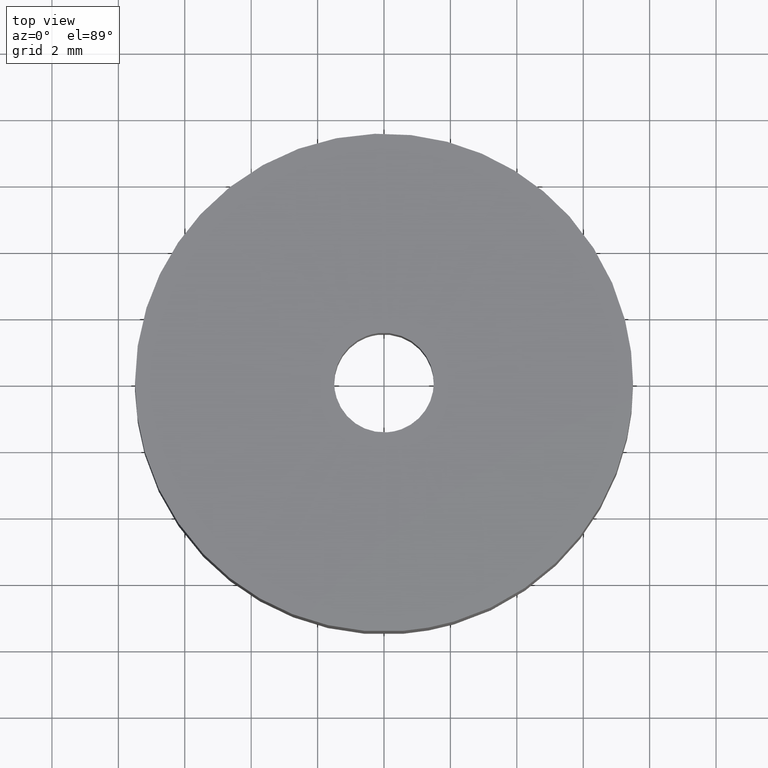
[diagram: clean part render]
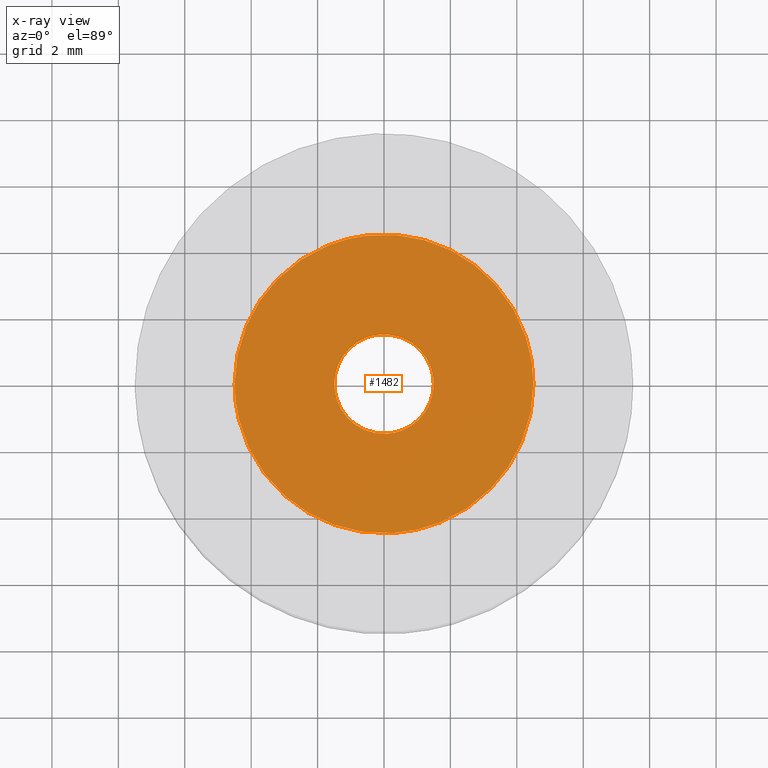
[diagram: x-ray — body ghosted, one internal face saturated and labeled with its STEP entity id]
A machine part, top view, then the same camera in x-ray: the body is ghosted and one INTERNAL B-rep face — a face not visible from any outside direction — is saturated and labeled: STEP entity #1482.
In plain terms, the highlighted face is a freeform B-spline surface patch.
Its self-contained STEP definition (entity closure, byte-faithful):
#754=CARTESIAN_POINT('',(-0.177051352002078,1.489514289543486,3.500000000000000));
#755=VERTEX_POINT('',#754);
#761=CARTESIAN_POINT('',(1.500000000000000,0.0,3.500000000000000));
#762=VERTEX_POINT('',#761);
#763=CARTESIAN_POINT('',(-0.177051352002078,1.489514289543485,3.500000000000000));
#764=CARTESIAN_POINT('',(-0.088836179494984,1.500000000000000,3.500000000000000));
#765=CARTESIAN_POINT('',(0.0,1.500000000000000,3.500000000000000));
#766=CARTESIAN_POINT('',(1.500000000000000,1.500000000000000,3.499999999999999));
#767=CARTESIAN_POINT('',(1.500000000000000,0.0,3.500000000000000));
#775=(BOUNDED_CURVE()B_SPLINE_CURVE(2,(#763,#764,#765,#766,#767),.UNSPECIFIED.,.F.,.U.)B_SPLINE_CURVE_WITH_KNOTS((3,2,3),(0.229562473511800,0.250000000000000,0.500000000000000),.UNSPECIFIED.)CURVE()GEOMETRIC_REPRESENTATION_ITEM()RATIONAL_B_SPLINE_CURVE((0.956026754180351,0.976055948329144,1.0,0.707106781186548,1.0))REPRESENTATION_ITEM(''));
#776=EDGE_CURVE('',#755,#762,#775,.T.);
#778=CARTESIAN_POINT('',(0.091572612195500,-1.497202209688342,3.500000000000000));
#779=VERTEX_POINT('',#778);
#780=CARTESIAN_POINT('',(1.500000000000000,0.0,3.500000000000000));
#781=CARTESIAN_POINT('',(1.500000000000000,-1.411059472584951,3.500000000000000));
#782=CARTESIAN_POINT('',(0.091572612195500,-1.497202209688342,3.500000000000000));
#790=(BOUNDED_CURVE()B_SPLINE_CURVE(2,(#780,#781,#782),.UNSPECIFIED.,.F.,.U.)B_SPLINE_CURVE_WITH_KNOTS((3,3),(0.500000000000000,0.739333007673568),.UNSPECIFIED.)CURVE()GEOMETRIC_REPRESENTATION_ITEM()RATIONAL_B_SPLINE_CURVE((1.0,0.719603940056736,0.976072139041787))REPRESENTATION_ITEM(''));
#791=EDGE_CURVE('',#762,#779,#790,.T.);
#865=CARTESIAN_POINT('',(-1.500000000000000,0.0,3.500000000000000));
#866=VERTEX_POINT('',#865);
#867=CARTESIAN_POINT('',(0.091572612195500,-1.497202209688341,3.500000000000000));
#868=CARTESIAN_POINT('',(0.045828947288432,-1.500000000000000,3.500000000000000));
#869=CARTESIAN_POINT('',(0.0,-1.500000000000000,3.500000000000000));
#870=CARTESIAN_POINT('',(-1.500000000000000,-1.500000000000000,3.499999999999999));
#871=CARTESIAN_POINT('',(-1.500000000000000,0.0,3.500000000000000));
#879=(BOUNDED_CURVE()B_SPLINE_CURVE(2,(#867,#868,#869,#870,#871),.UNSPECIFIED.,.F.,.U.)B_SPLINE_CURVE_WITH_KNOTS((3,2,3),(0.739333007673567,0.750000000000000,1.0),.UNSPECIFIED.)CURVE()GEOMETRIC_REPRESENTATION_ITEM()RATIONAL_B_SPLINE_CURVE((0.976072139041785,0.987502841129810,1.0,0.707106781186548,1.0))REPRESENTATION_ITEM(''));
#880=EDGE_CURVE('',#779,#866,#879,.T.);
#882=CARTESIAN_POINT('',(-1.500000000000000,0.0,3.500000000000000));
#883=CARTESIAN_POINT('',(-1.500000000000000,1.332261788896535,3.500000000000000));
#884=CARTESIAN_POINT('',(-0.177051352002078,1.489514289543485,3.500000000000000));
#892=(BOUNDED_CURVE()B_SPLINE_CURVE(2,(#882,#883,#884),.UNSPECIFIED.,.F.,.U.)B_SPLINE_CURVE_WITH_KNOTS((3,3),(0.0,0.229562473511800),.UNSPECIFIED.)CURVE()GEOMETRIC_REPRESENTATION_ITEM()RATIONAL_B_SPLINE_CURVE((1.0,0.731050832857404,0.956026754180351))REPRESENTATION_ITEM(''));
#893=EDGE_CURVE('',#866,#755,#892,.T.);
#921=CARTESIAN_POINT('',(-0.531149244590394,4.468543440534910,3.500000000000124));
#922=VERTEX_POINT('',#921);
#923=CARTESIAN_POINT('',(4.500000000000000,0.0,3.500000000000000));
#924=VERTEX_POINT('',#923);
#925=CARTESIAN_POINT('',(-0.531149244590394,4.468543440534910,3.500000000000124));
#926=CARTESIAN_POINT('',(-0.266506107318906,4.500000000000000,3.500000000000001));
#927=CARTESIAN_POINT('',(0.0,4.500000000000000,3.500000000000000));
#928=CARTESIAN_POINT('',(4.500000000000000,4.500000000000000,3.500000000000000));
#929=CARTESIAN_POINT('',(4.500000000000000,0.0,3.500000000000000));
#937=(BOUNDED_CURVE()B_SPLINE_CURVE(2,(#925,#926,#927,#928,#929),.UNSPECIFIED.,.F.,.U.)B_SPLINE_CURVE_WITH_KNOTS((3,2,3),(0.229562655484666,0.250000000000000,0.500000000000000),.UNSPECIFIED.)CURVE()GEOMETRIC_REPRESENTATION_ITEM()RATIONAL_B_SPLINE_CURVE((0.956027110854925,0.976056161523617,1.0,0.707106781186547,1.0))REPRESENTATION_ITEM(''));
#938=EDGE_CURVE('',#922,#924,#937,.T.);
#979=CARTESIAN_POINT('',(0.274713686514488,-4.491606882889357,3.500000000000146));
#980=VERTEX_POINT('',#979);
#986=CARTESIAN_POINT('',(4.500000000000000,0.0,3.500000000000000));
#987=CARTESIAN_POINT('',(4.500000000000001,-4.233181778019350,3.500000000000000));
#988=CARTESIAN_POINT('',(0.274713686514488,-4.491606882889357,3.500000000000146));
#996=(BOUNDED_CURVE()B_SPLINE_CURVE(2,(#986,#987,#988),.UNSPECIFIED.,.F.,.U.)B_SPLINE_CURVE_WITH_KNOTS((3,3),(0.500000000000000,0.739333144384399),.UNSPECIFIED.)CURVE()GEOMETRIC_REPRESENTATION_ITEM()RATIONAL_B_SPLINE_CURVE((1.0,0.719603779890034,0.976072432039414))REPRESENTATION_ITEM(''));
#997=EDGE_CURVE('',#924,#980,#996,.T.);
#1020=CARTESIAN_POINT('',(-4.500000000000000,0.0,3.500000000000000));
#1021=VERTEX_POINT('',#1020);
#1022=CARTESIAN_POINT('',(-4.500000000000000,0.0,3.500000000000000));
#1023=CARTESIAN_POINT('',(-4.499999999999999,3.996789700492105,3.500000000000000));
#1024=CARTESIAN_POINT('',(-0.531149244590394,4.468543440534910,3.500000000000124));
#1032=(BOUNDED_CURVE()B_SPLINE_CURVE(2,(#1022,#1023,#1024),.UNSPECIFIED.,.F.,.U.)B_SPLINE_CURVE_WITH_KNOTS((3,3),(0.0,0.229562655484666),.UNSPECIFIED.)CURVE()GEOMETRIC_REPRESENTATION_ITEM()RATIONAL_B_SPLINE_CURVE((1.0,0.731050619662930,0.956027110854925))REPRESENTATION_ITEM(''));
#1033=EDGE_CURVE('',#1021,#922,#1032,.T.);
#1035=CARTESIAN_POINT('',(0.274713686514488,-4.491606882889357,3.500000000000146));
#1036=CARTESIAN_POINT('',(0.137485057500456,-4.500000000000000,3.499999999999999));
#1037=CARTESIAN_POINT('',(0.0,-4.500000000000000,3.500000000000000));
#1038=CARTESIAN_POINT('',(-4.500000000000000,-4.500000000000000,3.500000000000000));
#1039=CARTESIAN_POINT('',(-4.500000000000000,0.0,3.500000000000000));
#1047=(BOUNDED_CURVE()B_SPLINE_CURVE(2,(#1035,#1036,#1037,#1038,#1039),.UNSPECIFIED.,.F.,.U.)B_SPLINE_CURVE_WITH_KNOTS((3,2,3),(0.739333144384399,0.750000000000000,1.0),.UNSPECIFIED.)CURVE()GEOMETRIC_REPRESENTATION_ITEM()RATIONAL_B_SPLINE_CURVE((0.976072432039414,0.987503001296513,1.0,0.707106781186547,1.0))REPRESENTATION_ITEM(''));
#1048=EDGE_CURVE('',#980,#1021,#1047,.T.);
#1465=CARTESIAN_POINT('',(-4.949549982556253,-4.949440710012758,3.500000000000000));
#1466=CARTESIAN_POINT('',(4.949550223955065,-4.949440710012758,3.500000000000000));
#1467=CARTESIAN_POINT('',(-4.949549982556253,4.949468149010982,3.500000000000000));
#1468=CARTESIAN_POINT('',(4.949550223955065,4.949468149010982,3.500000000000000));
#1469=B_SPLINE_SURFACE_WITH_KNOTS('',1,1,((#1465,#1467),(#1466,#1468)),.UNSPECIFIED.,.F.,.F.,.U.,(2,2),(2,2),(0.0,9.899100206511317),(0.0,9.898908859023740),.UNSPECIFIED.);
#1470=ORIENTED_EDGE('',*,*,#1033,.T.);
#1471=ORIENTED_EDGE('',*,*,#938,.T.);
#1472=ORIENTED_EDGE('',*,*,#997,.T.);
#1473=ORIENTED_EDGE('',*,*,#1048,.T.);
#1474=EDGE_LOOP('',(#1470,#1471,#1472,#1473));
#1475=FACE_OUTER_BOUND('',#1474,.T.);
#1476=ORIENTED_EDGE('',*,*,#791,.F.);
#1477=ORIENTED_EDGE('',*,*,#776,.F.);
#1478=ORIENTED_EDGE('',*,*,#893,.F.);
#1479=ORIENTED_EDGE('',*,*,#880,.F.);
#1480=EDGE_LOOP('',(#1476,#1477,#1478,#1479));
#1481=FACE_BOUND('',#1480,.T.);
#1482=ADVANCED_FACE('',(#1475,#1481),#1469,.F.);